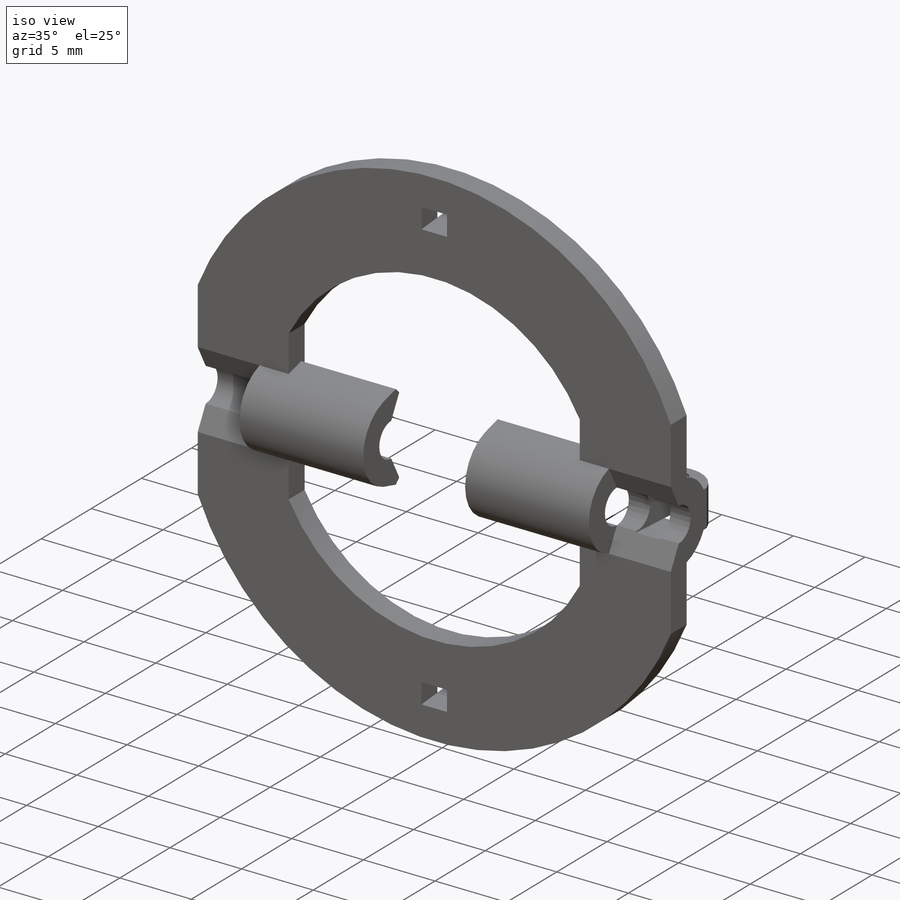
[diagram: iso view]
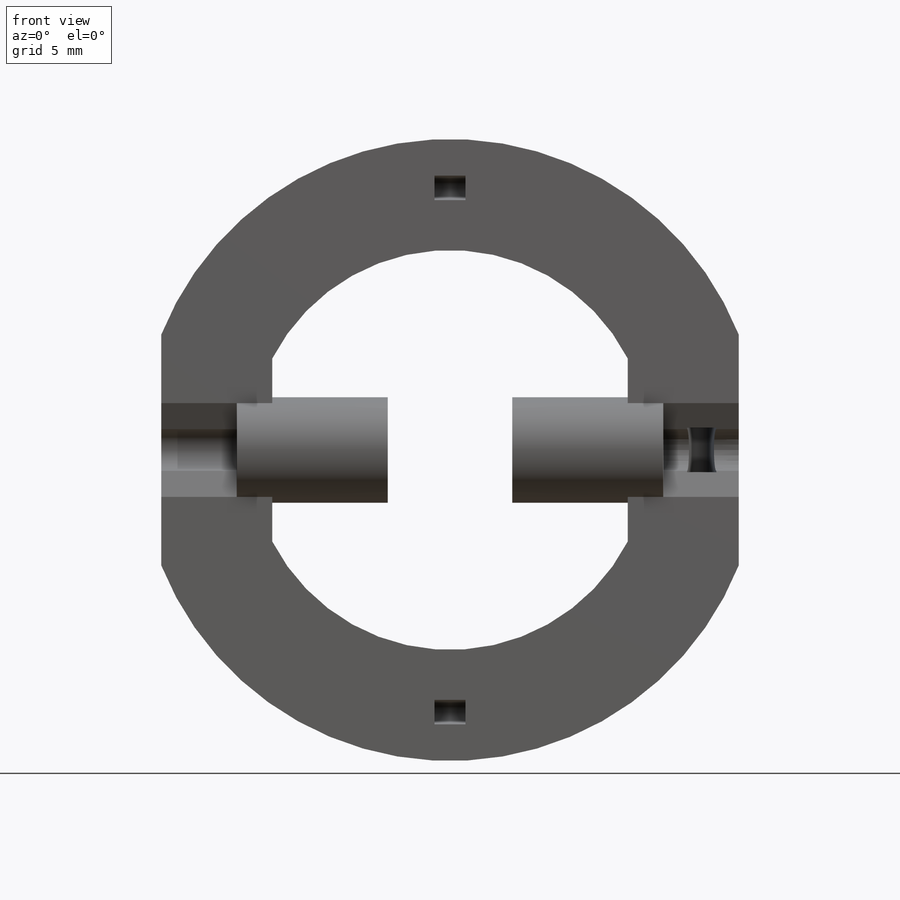
[diagram: front view]
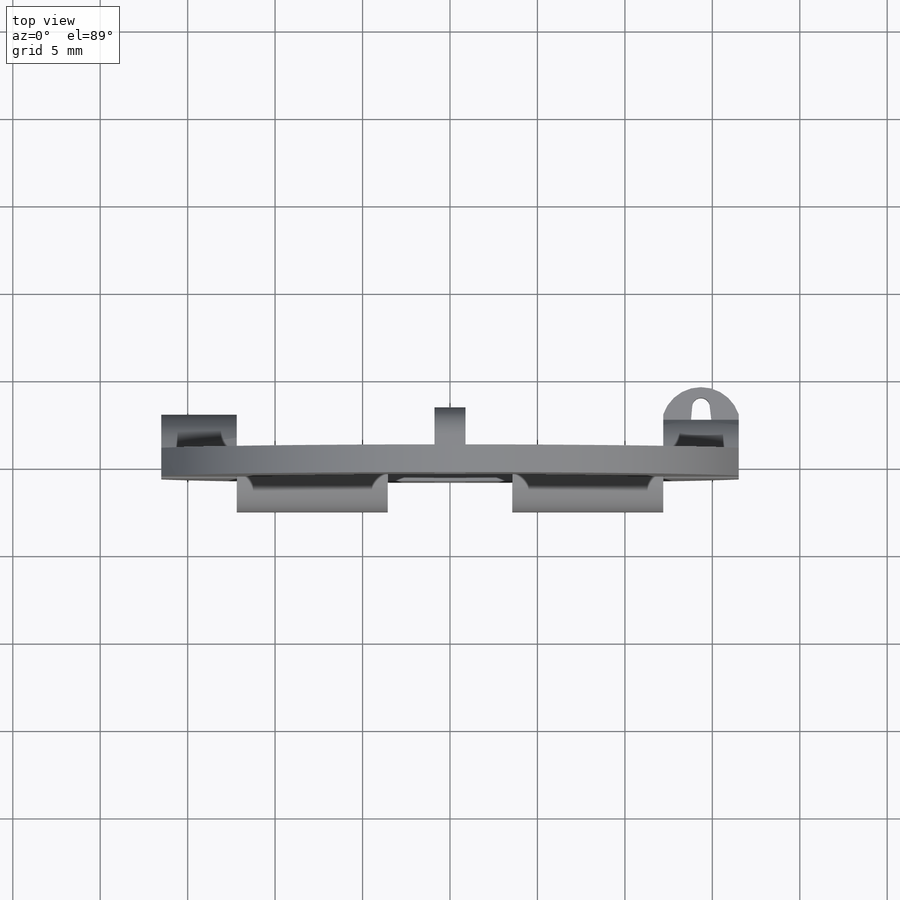
[diagram: top view]
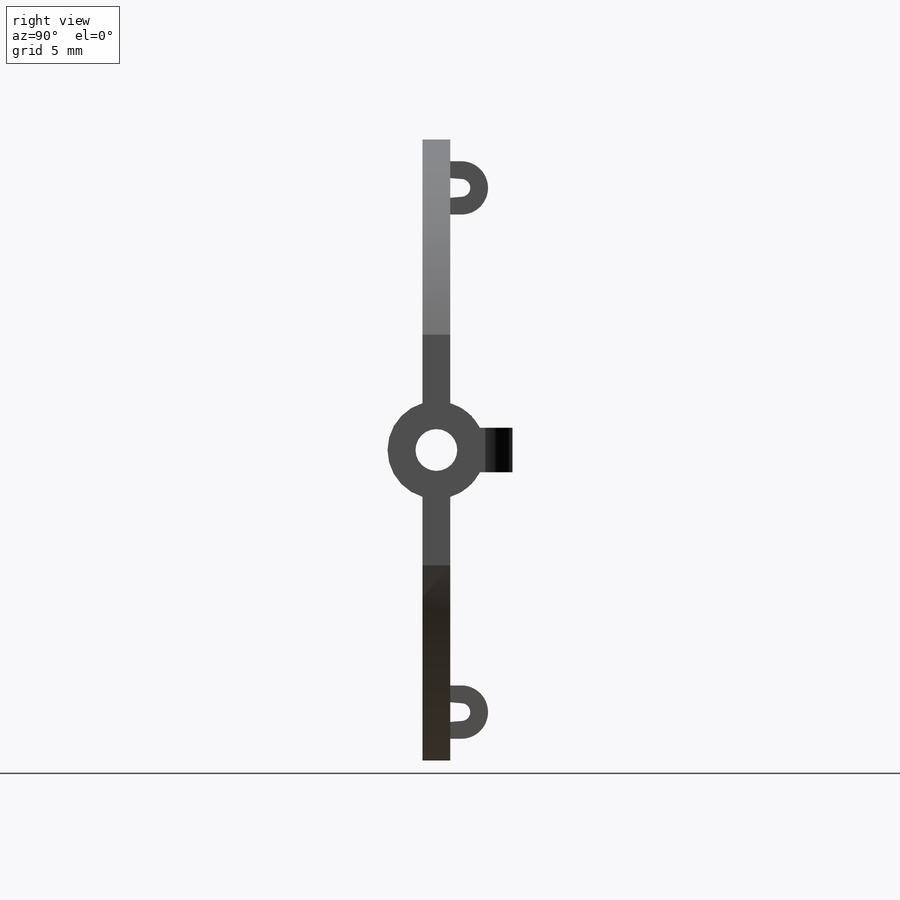
[diagram: right view]
SOLIDWORKS PART (.sldprt)
format: sldprt  version: not decoded by parser v0  size: 466,944 bytes
history: native  units: mm
features: sketch x15, cut_extrude x9, extrude x6, mirror x5, material x1, plane x1 (+16 scaffold rows collapsed)
feature tree (53):
  scaffold x16  (default folders/planes/origin — collapsed)
  material  "Material <not specified>"
  sketch  "Sketch1"  dims[D1=35.56mm D2=22.86mm]
  extrude  "Boss-Extrude1"  Depth=0.79375mm
  plane  "Plane1"  Offset=10.16mm
  sketch  "Sketch20"  dims[D1=5.588mm]
  extrude  "Boss-Extrude7"  Depth=6.35mm
  sketch  "Sketch21"
  cut_extrude  "cut for screw clearance on side"  [1 undecoded]
  mirror  "Mirror1"
  sketch  "Sketch22"  dims[D1=2.3876mm]
  cut_extrude  "cut for axle"  [1 undecoded]
  sketch  "Sketch35"  dims[c1.D1=~3.611187mm c2.D1=5.0deg c2.D2=~3.696754mm c3.D2=5.0deg c3.D3=~6.169643mm]
  cut_extrude  "cut1 for straight pull on axle hole"  Depth=2.032mm
  sketch  "Sketch41"  dims[c1.D1=~3.063222mm c2.D1=5.0deg c2.D2=~3.063222mm c3.D2=5.0deg]
  cut_extrude  "cut2 for straight pull on axle hole"  [1 undecoded]
  sketch  "Sketch42"  dims[D3=1.016mm D1=0.5334mm D2=0.635mm]
  extrude  "x axis ring"  Depth=1.27mm
  sketch  "Sketch43"  dims[c1.D1=~4.310917mm c2.D1=5.0deg]
  cut_extrude  "cut for straight pull on x axis ring"  Depth=2.54mm
  sketch  "Sketch29"  dims[c1.D4=1.016mm c1.D1=15.24mm c1.D2=15.24mm c2.D1=16.51mm c2.D2=0.635mm c2.D3=1.524mm c2.D5=1.524mm]
  extrude  "y axis control wire ring"  Depth=0.889mm
  sketch  "Sketch30"  dims[c1.D1=2.2225mm c2.D1=5.0deg c2.D2=2.2225mm c3.D2=5.0deg]
  cut_extrude  "y axis straight pull feature"  Depth=1.778mm
  mirror  "mirror of y ring"
  sketch  "Sketch31"  dims[c1.D1=2.2225mm c2.D1=5.0deg c2.D2=2.2225mm c3.D2=5.0deg]
  cut_extrude  "y axis straight pull feature on mirrorr"  Depth=1.778mm
  sketch  "Sketch40"
  extrude  "build out material for axle hole"  Depth=1.5875mm
  mirror  "Mirror16"
  mirror  "Mirror17"
  sketch  "Sketch44"
  cut_extrude  "Cut-Extrude1"  Depth=2.032mm
  sketch  "Sketch45"
  cut_extrude  "Cut-Extrude2"  [1 undecoded]
  sketch  "Sketch46"  dims[c1.D6=1.1938mm c1.D1=0.254mm c1.D2=0.254mm c2.D1=0.254mm c3.D1=110.0deg c3.D3=0.254mm c3.D4=0.254mm c4.D3=0.254mm c5.D3=110.0deg c5.D1=~5.35776mm c5.D2=0.3302mm c6.D3=0.3302mm c6.D4=0.3302mm c6.D5=0.3302mm c6.D1=0.3302mm c6.D2=~0.48691mm c7.D1=~2.557464mm c8.D1=~38.095247deg c9.D1=~2.557464mm c10.D1=45.0deg c10.D2=~2.557464mm c11.D2=75.0deg c11.D3=~2.557464mm c12.D3=45.0deg c12.D4=~2.557464mm c13.D4=75.0deg]
  extrude  "Boss-Extrude8"  Depth=6.604mm
  mirror  "Mirror19"  Thickness=0.8128mm
decode coverage: 23 of 35 modeling features carry decoded parameters
note: ~ marks probable driven/reference dimensions
note: 4 parameter values undecoded
summary: no parameter record found for 4 features
note: suppression state not decoded; provenance and decode notes live in map.json
